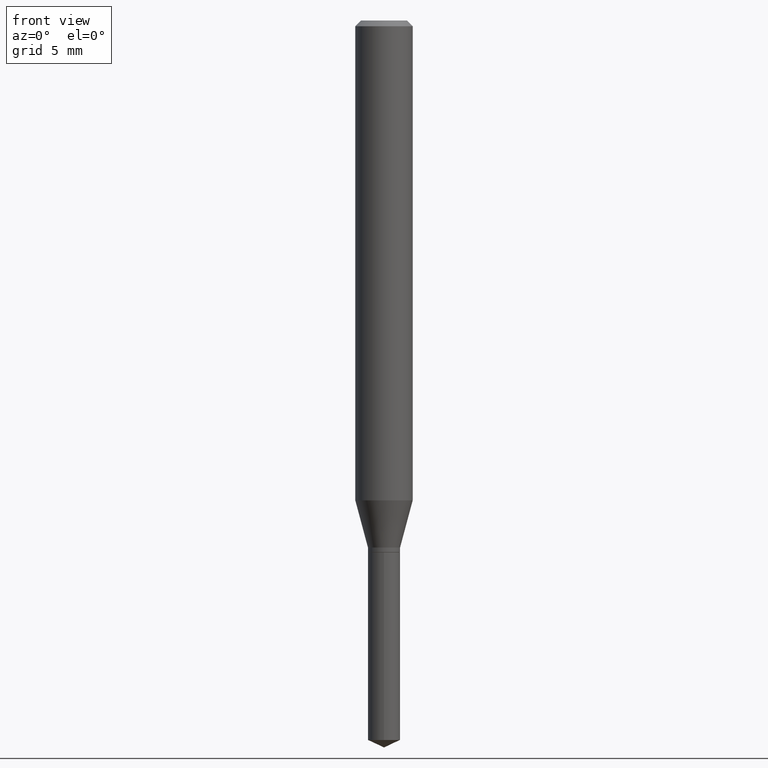
[diagram: clean part render]
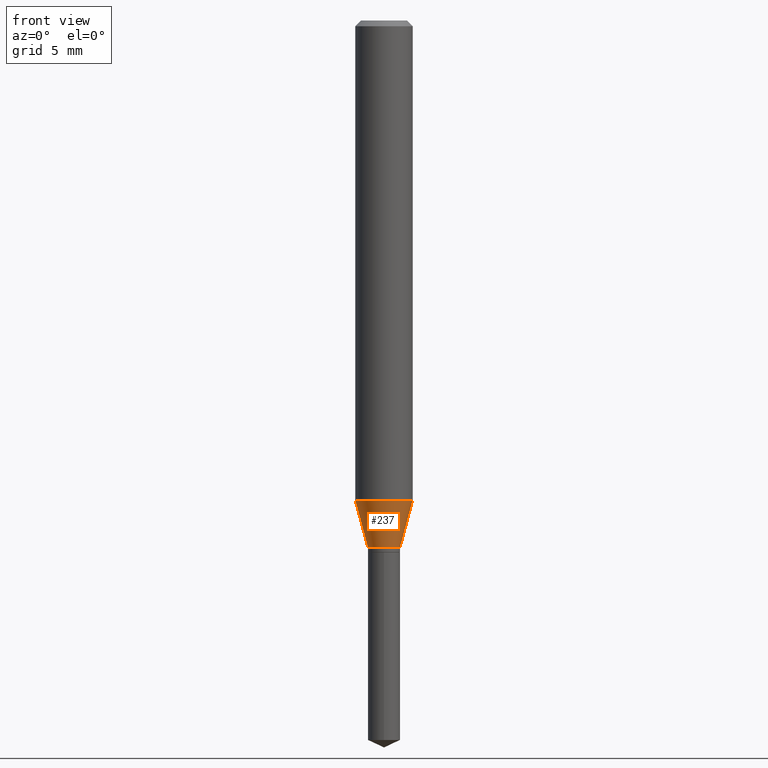
[diagram: same view with one face highlighted and labeled with its STEP entity id]
A machine part, front view. The second image highlights one B-rep face of the part: STEP entity #237.
In plain terms, the highlighted conical surface has half-angle 15 deg.
Its self-contained STEP definition (entity closure, byte-faithful):
#4 = CIRCLE ( 'NONE', #400, 0.05905000000000011628 ) ;
#21 = CARTESIAN_POINT ( 'NONE',  ( 2.652355467188399034E-29, -3.786860660109275425E-15, -1.084600000000000009 ) ) ;
#32 = CARTESIAN_POINT ( 'NONE',  ( 0.03305000000000000299, -4.017647576606806874E-15, -1.084600000000000009 ) ) ;
#45 = EDGE_LOOP ( 'NONE', ( #142, #202, #107, #233 ) ) ;
#70 = DIRECTION ( 'NONE',  ( -2.445468806185136597E-29, 3.491481338843145583E-15, 1.000000000000000000 ) ) ;
#72 = DIRECTION ( 'NONE',  ( 0.2588190451025211281, 1.565188264969622954E-15, 0.9659258262890679791 ) ) ;
#98 = DIRECTION ( 'NONE',  ( 1.000000000000000000, -6.982962677686269077E-15, 0.000000000000000000 ) ) ;
#107 = ORIENTED_EDGE ( 'NONE', *, *, #464, .T. ) ;
#109 = CARTESIAN_POINT ( 'NONE',  ( -0.05905000000000011628, -3.028495145136662552E-15, -0.9875666790032088249 ) ) ;
#128 = LINE ( 'NONE', #436, #383 ) ;
#132 = DIRECTION ( 'NONE',  ( 1.000000000000000000, -6.982962677686269077E-15, 0.000000000000000000 ) ) ;
#134 = CARTESIAN_POINT ( 'NONE',  ( -0.03305000000000000299, -3.568436248233125067E-15, -1.084600000000000009 ) ) ;
#136 = CARTESIAN_POINT ( 'NONE',  ( 2.652355467188399034E-29, -3.786860660109275425E-15, -1.084600000000000009 ) ) ;
#142 = ORIENTED_EDGE ( 'NONE', *, *, #249, .F. ) ;
#163 = VERTEX_POINT ( 'NONE', #134 ) ;
#202 = ORIENTED_EDGE ( 'NONE', *, *, #312, .T. ) ;
#224 = CARTESIAN_POINT ( 'NONE',  ( 2.415063507530197396E-29, -3.448070630603002833E-15, -0.9875666790032088249 ) ) ;
#231 = VECTOR ( 'NONE', #72, 39.37007874015748854 ) ;
#233 = ORIENTED_EDGE ( 'NONE', *, *, #457, .F. ) ;
#237 = ADVANCED_FACE ( 'NONE', ( #324 ), #320, .T. ) ;
#249 = EDGE_CURVE ( 'NONE', #163, #462, #128, .T. ) ;
#262 = LINE ( 'NONE', #418, #231 ) ;
#292 = CARTESIAN_POINT ( 'NONE',  ( 0.05905000000000011628, -3.860414576720377754E-15, -0.9875666790032088249 ) ) ;
#300 = VERTEX_POINT ( 'NONE', #32 ) ;
#301 = AXIS2_PLACEMENT_3D ( 'NONE', #21, #472, #132 ) ;
#312 = EDGE_CURVE ( 'NONE', #163, #300, #431, .T. ) ;
#320 = CONICAL_SURFACE ( 'NONE', #301, 0.03305000000000000299, 0.2617993877991498519 ) ;
#324 = FACE_OUTER_BOUND ( 'NONE', #45, .T. ) ;
#361 = AXIS2_PLACEMENT_3D ( 'NONE', #136, #70, #98 ) ;
#378 = DIRECTION ( 'NONE',  ( -2.445468806185136597E-29, 3.491481338843145583E-15, 1.000000000000000000 ) ) ;
#380 = VERTEX_POINT ( 'NONE', #292 ) ;
#383 = VECTOR ( 'NONE', #438, 39.37007874015748854 ) ;
#400 = AXIS2_PLACEMENT_3D ( 'NONE', #224, #378, #454 ) ;
#418 = CARTESIAN_POINT ( 'NONE',  ( 0.03305000000000000299, -4.017647576606806874E-15, -1.084600000000000009 ) ) ;
#431 = CIRCLE ( 'NONE', #361, 0.03305000000000000299 ) ;
#436 = CARTESIAN_POINT ( 'NONE',  ( -0.03305000000000000299, -3.552026285940562539E-15, -1.084600000000000009 ) ) ;
#438 = DIRECTION ( 'NONE',  ( -0.2588190451025211281, 5.211531920934547886E-15, 0.9659258262890679791 ) ) ;
#454 = DIRECTION ( 'NONE',  ( 1.000000000000000000, -6.982962677686266711E-15, 0.000000000000000000 ) ) ;
#457 = EDGE_CURVE ( 'NONE', #462, #380, #4, .T. ) ;
#462 = VERTEX_POINT ( 'NONE', #109 ) ;
#464 = EDGE_CURVE ( 'NONE', #300, #380, #262, .T. ) ;
#472 = DIRECTION ( 'NONE',  ( -2.445468806185136597E-29, 3.491481338843145583E-15, 1.000000000000000000 ) ) ;